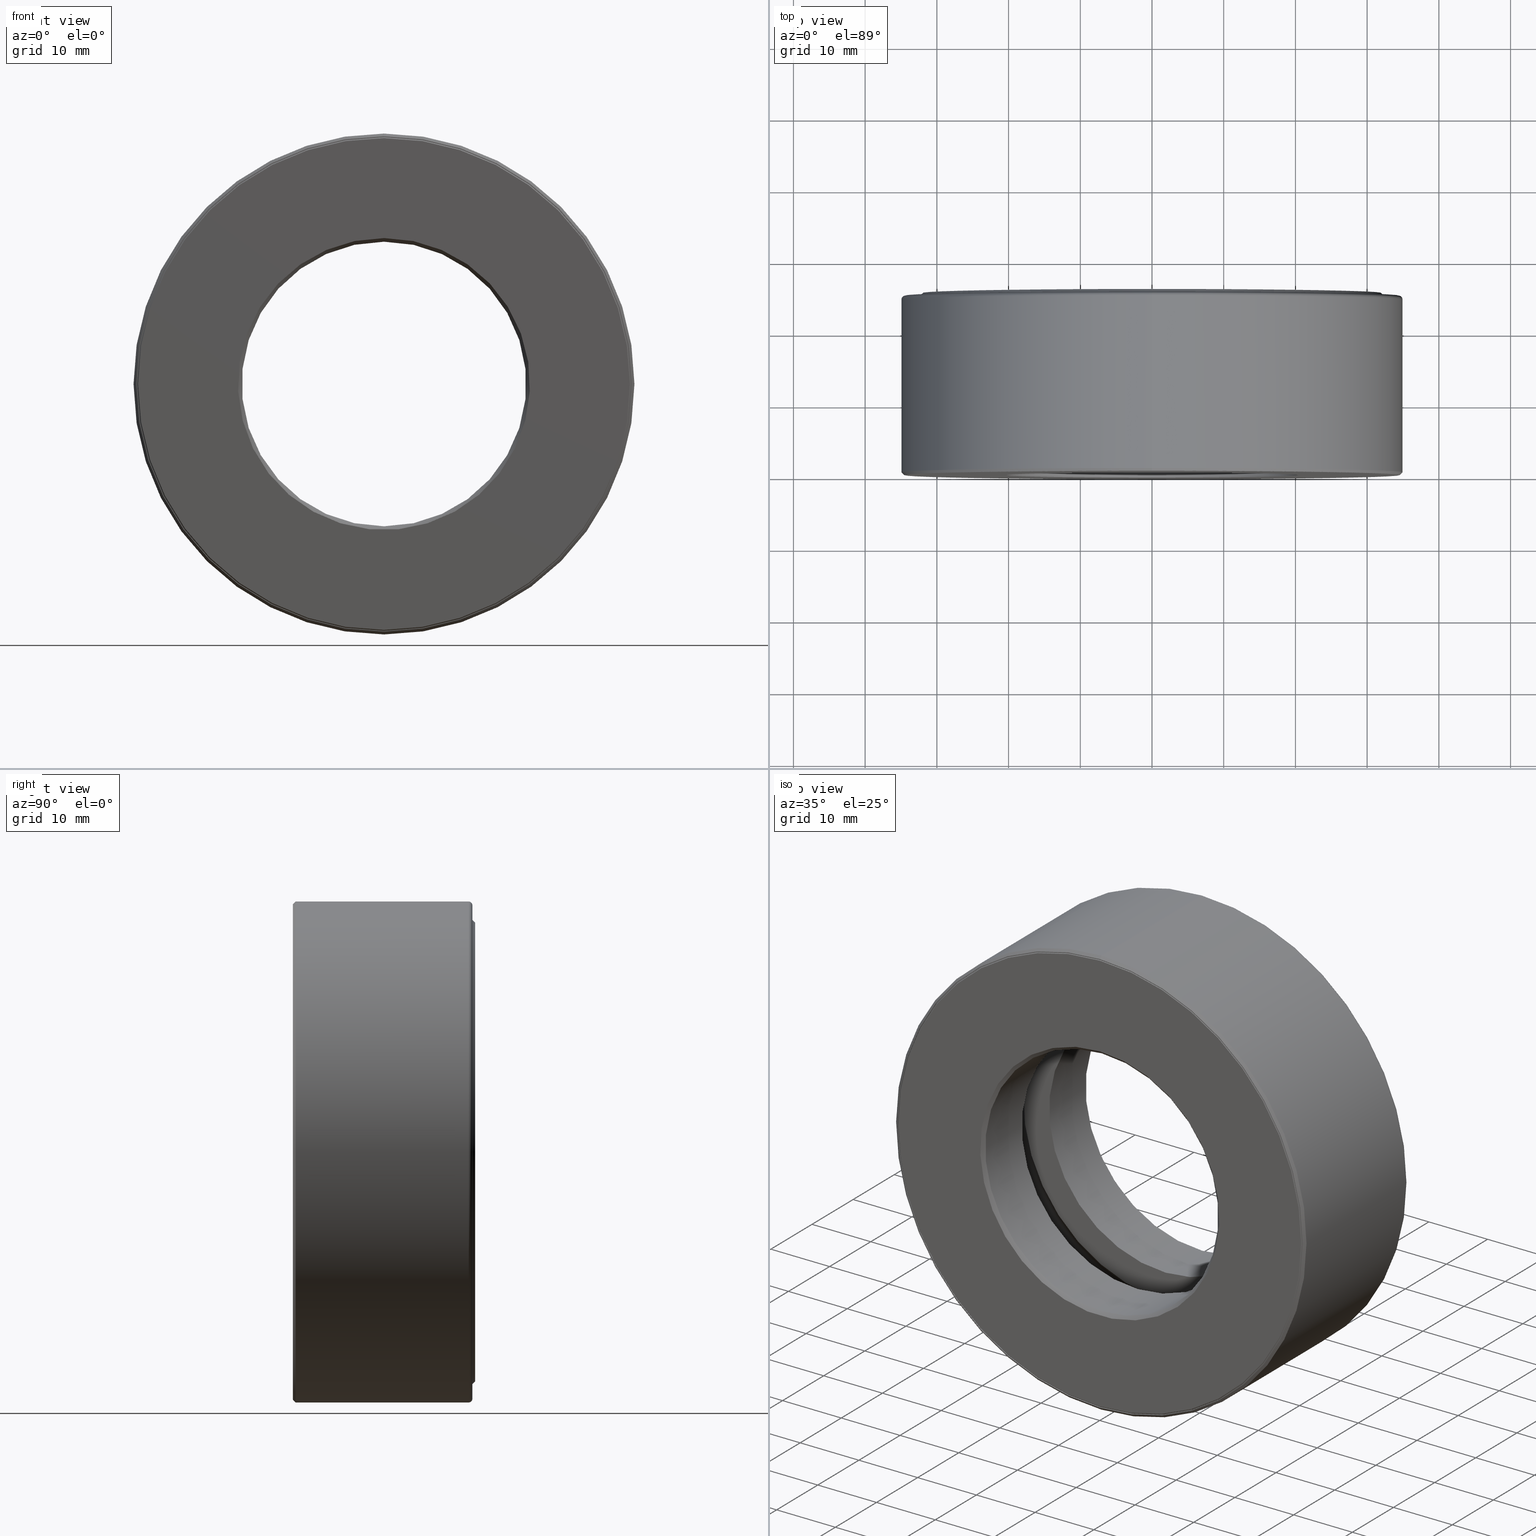
[diagram: canonical four-view strip — front | top / right | iso, engineering-drawing reading convention]
A machine part, canonical four-view strip (front | top / right | iso — engineering-drawing reading convention). The complete STEP part file that produces these views, byte-faithful:
ISO-10303-21;
HEADER;
FILE_DESCRIPTION (( 'STEP AP203' ),
    '1' );
FILE_NAME ('T-100-28.step',
    '2016-06-29T18:27:28',
    ( '' ),
    ( '' ),
    'SwSTEP 2.0',
    'SolidWorks 2016',
    '' );
FILE_SCHEMA (( 'CONFIG_CONTROL_DESIGN' ));
ENDSEC;

DATA;
#1 = AXIS2_PLACEMENT_3D ( 'NONE', #585, #500, #362 ) ;
#2 = CARTESIAN_POINT ( 'NONE',  ( 0.0000000000000000000, 0.01499999999999984000, 1.374999999999999300 ) ) ;
#3 = DIRECTION ( 'NONE',  ( 0.0000000000000000000, -1.000000000000000000, 0.0000000000000000000 ) ) ;
#4 = PLANE ( 'NONE',  #561 ) ;
#5 = ADVANCED_FACE ( 'NONE', ( #503, #558 ), #4, .T. ) ;
#6 = COORDINATED_UNIVERSAL_TIME_OFFSET ( 5, 0, .BEHIND. ) ;
#7 = TOROIDAL_SURFACE ( 'NONE', #483, 1.355000000000000000, 0.02000000000000005900 ) ;
#8 = CARTESIAN_POINT ( 'NONE',  ( 0.0000000000000000000, 0.9649999999999999700, 0.0000000000000000000 ) ) ;
#9 = CLOSED_SHELL ( 'NONE', ( #302 ) ) ;
#10 = PERSON_AND_ORGANIZATION_ROLE ( 'creator' ) ;
#11 = AXIS2_PLACEMENT_3D ( 'NONE', #212, #502, #311 ) ;
#12 = DIRECTION ( 'NONE',  ( 1.047444401652940500E-014, 0.0000000000000000000, 1.000000000000000000 ) ) ;
#13 = ADVANCED_BREP_SHAPE_REPRESENTATION ( 'T-100-28', ( #223, #101, #273, #43, #460, #437, #207 ), #271 ) ;
#14 = CIRCLE ( 'NONE', #451, 0.9522500000000001500 ) ;
#15 = FACE_OUTER_BOUND ( 'NONE', #236, .T. ) ;
#16 = DIRECTION ( 'NONE',  ( -0.0000000000000000000, 1.000000000000000000, -0.0000000000000000000 ) ) ;
#17 = ORIENTED_EDGE ( 'NONE', *, *, #471, .T. ) ;
#18 = EDGE_LOOP ( 'NONE', ( #280 ) ) ;
#19 = AXIS2_PLACEMENT_3D ( 'NONE', #368, #547, #544 ) ;
#20 = CARTESIAN_POINT ( 'NONE',  ( 0.0000000000000000000, 0.004999999999999966300, 0.0000000000000000000 ) ) ;
#21 = VERTEX_POINT ( 'NONE', #50 ) ;
#22 = CIRCLE ( 'NONE', #387, 1.347999999999999900 ) ;
#23 = PRODUCT_DEFINITION_FORMATION_WITH_SPECIFIED_SOURCE ( 'ANY', '', #125, .NOT_KNOWN. ) ;
#24 = EDGE_LOOP ( 'NONE', ( #433 ) ) ;
#25 = DIRECTION ( 'NONE',  ( 0.0000000000000000000, -0.0000000000000000000, -1.000000000000000000 ) ) ;
#26 = DIRECTION ( 'NONE',  ( -0.0000000000000000000, 1.000000000000000000, -0.0000000000000000000 ) ) ;
#27 = VERTEX_POINT ( 'NONE', #480 ) ;
#28 = FACE_OUTER_BOUND ( 'NONE', #515, .T. ) ;
#29 = EDGE_CURVE ( 'NONE', #62, #62, #64, .T. ) ;
#30 = PLANE ( 'NONE',  #396 ) ;
#31 = FACE_BOUND ( 'NONE', #383, .T. ) ;
#32 = ORIENTED_EDGE ( 'NONE', *, *, #110, .F. ) ;
#33 = CARTESIAN_POINT ( 'NONE',  ( 3.935772339210922200E-015, 0.5000000000000000000, 1.127250000000000100 ) ) ;
#34 = CARTESIAN_POINT ( 'NONE',  ( 0.0000000000000000000, 0.9649999999999999700, 0.0000000000000000000 ) ) ;
#35 = AXIS2_PLACEMENT_3D ( 'NONE', #227, #134, #522 ) ;
#36 = VERTEX_POINT ( 'NONE', #385 ) ;
#37 = DIRECTION ( 'NONE',  ( 0.0000000000000000000, 0.0000000000000000000, 1.000000000000000000 ) ) ;
#38 = FACE_OUTER_BOUND ( 'NONE', #504, .T. ) ;
#39 = AXIS2_PLACEMENT_3D ( 'NONE', #469, #46, #270 ) ;
#40 = ORIENTED_EDGE ( 'NONE', *, *, #505, .F. ) ;
#41 = DIRECTION ( 'NONE',  ( -0.0000000000000000000, 1.000000000000000000, -0.0000000000000000000 ) ) ;
#42 = ORIENTED_EDGE ( 'NONE', *, *, #315, .T. ) ;
#43 = MANIFOLD_SOLID_BREP ( 'BALLS[1]', #9 ) ;
#44 = CARTESIAN_POINT ( 'NONE',  ( 0.0000000000000000000, -6.189343110645596500E-017, 0.0000000000000000000 ) ) ;
#45 = AXIS2_PLACEMENT_3D ( 'NONE', #589, #506, #314 ) ;
#46 = DIRECTION ( 'NONE',  ( 0.0000000000000000000, -1.000000000000000000, 0.0000000000000000000 ) ) ;
#47 = CARTESIAN_POINT ( 'NONE',  ( 0.0000000000000000000, 0.0000000000000000000, 0.0000000000000000000 ) ) ;
#48 = FACE_BOUND ( 'NONE', #112, .T. ) ;
#49 = EDGE_LOOP ( 'NONE', ( #420 ) ) ;
#50 = CARTESIAN_POINT ( 'NONE',  ( 0.0000000000000000000, 0.9120000000000002500, 1.347999999999999900 ) ) ;
#51 = DIRECTION ( 'NONE',  ( 0.0000000000000000000, 0.0000000000000000000, 1.000000000000000000 ) ) ;
#52 = AXIS2_PLACEMENT_3D ( 'NONE', #33, #364, #415 ) ;
#53 = DIRECTION ( 'NONE',  ( 0.0000000000000000000, -1.000000000000000000, 0.0000000000000000000 ) ) ;
#54 = DATE_AND_TIME ( #582, #330 ) ;
#55 = FACE_OUTER_BOUND ( 'NONE', #18, .T. ) ;
#56 = CARTESIAN_POINT ( 'NONE',  ( 0.0000000000000000000, 0.0000000000000000000, 0.8012500000000001300 ) ) ;
#57 = ORIENTED_EDGE ( 'NONE', *, *, #406, .T. ) ;
#58 = CC_DESIGN_DATE_AND_TIME_ASSIGNMENT ( #553, #543, ( #286 ) ) ;
#59 = DIRECTION ( 'NONE',  ( -0.0000000000000000000, 1.000000000000000000, -0.0000000000000000000 ) ) ;
#60 = ADVANCED_FACE ( 'NONE', ( #78, #216 ), #491, .T. ) ;
#61 = APPLICATION_PROTOCOL_DEFINITION ( 'international standard', 'config_control_design', 1994, #100 ) ;
#62 = VERTEX_POINT ( 'NONE', #335 ) ;
#63 = DIRECTION ( 'NONE',  ( 0.0000000000000000000, 0.0000000000000000000, 1.000000000000000000 ) ) ;
#64 = CIRCLE ( 'NONE', #295, 1.355000000000000000 ) ;
#65 = ORIENTED_EDGE ( 'NONE', *, *, #436, .T. ) ;
#66 = AXIS2_PLACEMENT_3D ( 'NONE', #401, #452, #400 ) ;
#67 = ADVANCED_FACE ( 'NONE', ( ), #441, .T. ) ;
#68 = CARTESIAN_POINT ( 'NONE',  ( 0.0000000000000000000, 0.3687499999999999700, 0.0000000000000000000 ) ) ;
#69 = DIRECTION ( 'NONE',  ( 0.0000000000000000000, -1.000000000000000000, 0.0000000000000000000 ) ) ;
#70 = AXIS2_PLACEMENT_3D ( 'NONE', #44, #600, #423 ) ;
#71 = FACE_OUTER_BOUND ( 'NONE', #391, .T. ) ;
#72 = EDGE_LOOP ( 'NONE', ( #413 ) ) ;
#73 = DIRECTION ( 'NONE',  ( -0.0000000000000000000, 1.000000000000000000, -0.0000000000000000000 ) ) ;
#74 = ADVANCED_FACE ( 'NONE', ( #586, #31 ), #318, .F. ) ;
#75 = CALENDAR_DATE ( 2016, 29, 6 ) ;
#76 = EDGE_CURVE ( 'NONE', #296, #296, #466, .T. ) ;
#77 = CIRCLE ( 'NONE', #186, 0.7812499999999998900 ) ;
#78 = FACE_OUTER_BOUND ( 'NONE', #119, .T. ) ;
#79 = DIRECTION ( 'NONE',  ( -0.0000000000000000000, 1.000000000000000000, -0.0000000000000000000 ) ) ;
#80 = EDGE_LOOP ( 'NONE', ( #40 ) ) ;
#81 = DIRECTION ( 'NONE',  ( -0.0000000000000000000, 1.000000000000000000, 0.0000000000000000000 ) ) ;
#82 = LENGTH_MEASURE_WITH_UNIT ( LENGTH_MEASURE( 0.02539999999999999900 ), #230 );
#83 = AXIS2_PLACEMENT_3D ( 'NONE', #257, #255, #412 ) ;
#84 = DIRECTION ( 'NONE',  ( -0.0000000000000000000, 1.000000000000000000, -0.0000000000000000000 ) ) ;
#85 = CIRCLE ( 'NONE', #305, 0.7812500000000000000 ) ;
#86 = ORIENTED_EDGE ( 'NONE', *, *, #382, .T. ) ;
#87 = DIRECTION ( 'NONE',  ( -0.0000000000000000000, 1.000000000000000000, -0.0000000000000000000 ) ) ;
#88 = AXIS2_PLACEMENT_3D ( 'NONE', #187, #53, #127 ) ;
#89 = DATE_AND_TIME ( #208, #357 ) ;
#90 = FACE_OUTER_BOUND ( 'NONE', #291, .T. ) ;
#91 = CIRCLE ( 'NONE', #206, 1.302250000000000100 ) ;
#92 = EDGE_LOOP ( 'NONE', ( #298 ) ) ;
#93 = AXIS2_PLACEMENT_3D ( 'NONE', #482, #282, #476 ) ;
#94 = CARTESIAN_POINT ( 'NONE',  ( 0.0000000000000000000, 0.3687500000000000800, 0.7812500000000000000 ) ) ;
#95 = CARTESIAN_POINT ( 'NONE',  ( 0.0000000000000000000, -5.975917486140575200E-017, 1.349999999999999400 ) ) ;
#96 = CARTESIAN_POINT ( 'NONE',  ( 0.0000000000000000000, 0.6312499999999999800, 0.0000000000000000000 ) ) ;
#97 = AXIS2_PLACEMENT_3D ( 'NONE', #47, #372, #177 ) ;
#98 = APPROVAL_STATUS ( 'not_yet_approved' ) ;
#99 = FACE_BOUND ( 'NONE', #180, .T. ) ;
#100 = APPLICATION_CONTEXT ( 'configuration controlled 3d designs of mechanical parts and assemblies' ) ;
#101 = MANIFOLD_SOLID_BREP ( 'Revolve2[2]', #599 ) ;
#102 = ORIENTED_EDGE ( 'NONE', *, *, #436, .F. ) ;
#103 = PERSON_AND_ORGANIZATION ( #568, #303 ) ;
#104 = FACE_OUTER_BOUND ( 'NONE', #319, .T. ) ;
#105 = DIRECTION ( 'NONE',  ( -0.0000000000000000000, 1.000000000000000000, -0.0000000000000000000 ) ) ;
#106 = FACE_BOUND ( 'NONE', #467, .T. ) ;
#107 = ADVANCED_FACE ( 'NONE', ( #106, #381 ), #581, .F. ) ;
#108 = ORIENTED_EDGE ( 'NONE', *, *, #182, .F. ) ;
#109 = CARTESIAN_POINT ( 'NONE',  ( -4.774260415467792100E-016, 0.3687499999999999700, 0.0000000000000000000 ) ) ;
#110 = EDGE_CURVE ( 'NONE', #325, #325, #91, .T. ) ;
#111 = CONICAL_SURFACE ( 'NONE', #70, 1.359999999999999900, 0.7853981633974326200 ) ;
#112 = EDGE_LOOP ( 'NONE', ( #142 ) ) ;
#113 = ADVANCED_FACE ( 'NONE', ( #545, #479 ), #579, .F. ) ;
#114 = PLANE ( 'NONE',  #551 ) ;
#115 = VERTEX_POINT ( 'NONE', #434 ) ;
#116 = CARTESIAN_POINT ( 'NONE',  ( 0.0000000000000000000, 0.9649999999999999700, 0.0000000000000000000 ) ) ;
#117 = CIRCLE ( 'NONE', #419, 1.294999999999999900 ) ;
#118 = CIRCLE ( 'NONE', #337, 1.374999999999999300 ) ;
#119 = EDGE_LOOP ( 'NONE', ( #587 ) ) ;
#120 = CC_DESIGN_DATE_AND_TIME_ASSIGNMENT ( #54, #293, ( #565 ) ) ;
#121 = DIRECTION ( 'NONE',  ( -0.0000000000000000000, 1.000000000000000000, -0.0000000000000000000 ) ) ;
#122 = PERSON_AND_ORGANIZATION ( #568, #303 ) ;
#123 = CLOSED_SHELL ( 'NONE', ( #442 ) ) ;
#124 = COORDINATED_UNIVERSAL_TIME_OFFSET ( 5, 0, .BEHIND. ) ;
#125 = PRODUCT ( 'T-100-28', 'T-100-28', '', ( #486 ) ) ;
#126 = EDGE_CURVE ( 'NONE', #165, #165, #130, .T. ) ;
#127 = DIRECTION ( 'NONE',  ( 0.0000000000000000000, -0.0000000000000000000, -1.000000000000000000 ) ) ;
#128 = VERTEX_POINT ( 'NONE', #329 ) ;
#129 = CIRCLE ( 'NONE', #495, 0.7812500000000000000 ) ;
#130 = CIRCLE ( 'NONE', #196, 1.355000000000000000 ) ;
#131 =( CONVERSION_BASED_UNIT ( 'INCH', #82 ) LENGTH_UNIT ( ) NAMED_UNIT ( #361 ) );
#132 = EDGE_LOOP ( 'NONE', ( #237 ) ) ;
#133 = APPROVAL_DATE_TIME ( #510, #454 ) ;
#134 = DIRECTION ( 'NONE',  ( -0.0000000000000000000, 1.000000000000000000, -0.0000000000000000000 ) ) ;
#135 = EDGE_CURVE ( 'NONE', #380, #380, #576, .T. ) ;
#136 = CARTESIAN_POINT ( 'NONE',  ( 0.0000000000000000000, 0.9849999999999999900, 1.355000000000000000 ) ) ;
#137 = ADVANCED_FACE ( 'NONE', ( #366, #342 ), #549, .F. ) ;
#138 = VERTEX_POINT ( 'NONE', #139 ) ;
#139 = CARTESIAN_POINT ( 'NONE',  ( 0.0000000000000000000, 0.9849999999999999900, 1.294999999999999900 ) ) ;
#140 = FACE_OUTER_BOUND ( 'NONE', #132, .T. ) ;
#141 = EDGE_CURVE ( 'NONE', #27, #27, #185, .T. ) ;
#142 = ORIENTED_EDGE ( 'NONE', *, *, #175, .F. ) ;
#143 = AXIS2_PLACEMENT_3D ( 'NONE', #322, #41, #595 ) ;
#144 = APPLICATION_PROTOCOL_DEFINITION ( 'international standard', 'config_control_design', 1994, #390 ) ;
#145 = EDGE_LOOP ( 'NONE', ( #399 ) ) ;
#146 = PERSON_AND_ORGANIZATION_ROLE ( 'classification_officer' ) ;
#147 = ADVANCED_FACE ( 'NONE', ( ), #210, .T. ) ;
#148 = FACE_OUTER_BOUND ( 'NONE', #297, .T. ) ;
#149 = FACE_OUTER_BOUND ( 'NONE', #481, .T. ) ;
#150 = DIRECTION ( 'NONE',  ( 0.0000000000000000000, 0.0000000000000000000, 1.000000000000000000 ) ) ;
#151 = AXIS2_PLACEMENT_3D ( 'NONE', #462, #79, #458 ) ;
#152 = ORIENTED_EDGE ( 'NONE', *, *, #76, .F. ) ;
#153 = EDGE_LOOP ( 'NONE', ( #172 ) ) ;
#154 = DIRECTION ( 'NONE',  ( 0.0000000000000000000, 0.0000000000000000000, 1.000000000000000000 ) ) ;
#155 = DIRECTION ( 'NONE',  ( 0.0000000000000000000, 0.0000000000000000000, 1.000000000000000000 ) ) ;
#156 = AXIS2_PLACEMENT_3D ( 'NONE', #376, #121, #37 ) ;
#157 = CYLINDRICAL_SURFACE ( 'NONE', #143, 1.374999999999999800 ) ;
#158 = ORIENTED_EDGE ( 'NONE', *, *, #281, .T. ) ;
#159 = AXIS2_PLACEMENT_3D ( 'NONE', #174, #263, #274 ) ;
#160 = DIRECTION ( 'NONE',  ( 0.0000000000000000000, 0.0000000000000000000, 1.000000000000000000 ) ) ;
#161 = ADVANCED_FACE ( 'NONE', ( #312, #15 ), #570, .F. ) ;
#162 = EDGE_CURVE ( 'NONE', #256, #256, #118, .T. ) ;
#163 = DIRECTION ( 'NONE',  ( 0.0000000000000000000, -1.000000000000000000, 0.0000000000000000000 ) ) ;
#164 = UNCERTAINTY_MEASURE_WITH_UNIT (LENGTH_MEASURE( 1.000000000000000100E-005 ), #131, 'distance_accuracy_value', 'NONE');
#165 = VERTEX_POINT ( 'NONE', #514 ) ;
#166 = CARTESIAN_POINT ( 'NONE',  ( 0.0000000000000000000, 0.6312499999999999800, 0.0000000000000000000 ) ) ;
#167 = FACE_OUTER_BOUND ( 'NONE', #345, .T. ) ;
#168 = EDGE_LOOP ( 'NONE', ( #367 ) ) ;
#169 = CARTESIAN_POINT ( 'NONE',  ( -2.977491001268954500E-016, 1.000000000000000000, 0.0000000000000000000 ) ) ;
#170 = DIRECTION ( 'NONE',  ( 0.0000000000000000000, 0.0000000000000000000, 1.000000000000000000 ) ) ;
#171 = EDGE_CURVE ( 'NONE', #429, #429, #425, .T. ) ;
#172 = ORIENTED_EDGE ( 'NONE', *, *, #76, .T. ) ;
#173 = EDGE_LOOP ( 'NONE', ( #57 ) ) ;
#174 = CARTESIAN_POINT ( 'NONE',  ( 0.0000000000000000000, 0.3687499999999999700, 0.0000000000000000000 ) ) ;
#175 = EDGE_CURVE ( 'NONE', #496, #496, #85, .T. ) ;
#176 = DIRECTION ( 'NONE',  ( 0.0000000000000000000, 0.0000000000000000000, 1.000000000000000000 ) ) ;
#177 = DIRECTION ( 'NONE',  ( 0.0000000000000000000, 0.0000000000000000000, 1.000000000000000000 ) ) ;
#178 = FACE_OUTER_BOUND ( 'NONE', #92, .T. ) ;
#179 = EDGE_LOOP ( 'NONE', ( #200 ) ) ;
#180 = EDGE_LOOP ( 'NONE', ( #333 ) ) ;
#181 = DIRECTION ( 'NONE',  ( 0.0000000000000000000, 0.0000000000000000000, 1.000000000000000000 ) ) ;
#182 = EDGE_CURVE ( 'NONE', #349, #349, #591, .T. ) ;
#183 = CARTESIAN_POINT ( 'NONE',  ( 0.0000000000000000000, 1.000000000000000000, 1.260000000000000000 ) ) ;
#184 = CARTESIAN_POINT ( 'NONE',  ( 0.0000000000000000000, 0.9649999999999999700, 1.294999999999999900 ) ) ;
#185 = CIRCLE ( 'NONE', #555, 1.355000000000000000 ) ;
#186 = AXIS2_PLACEMENT_3D ( 'NONE', #283, #564, #386 ) ;
#187 = CARTESIAN_POINT ( 'NONE',  ( 0.0000000000000000000, 0.9849999999999999900, 0.0000000000000000000 ) ) ;
#188 = ORIENTED_EDGE ( 'NONE', *, *, #110, .T. ) ;
#189 = CARTESIAN_POINT ( 'NONE',  ( 0.0000000000000000000, 0.3687499999999999700, 0.9522500000000001500 ) ) ;
#190 = DIRECTION ( 'NONE',  ( -0.0000000000000000000, 1.000000000000000000, -0.0000000000000000000 ) ) ;
#191 = APPROVAL ( #98, 'UNSPECIFIED' ) ;
#192 = PERSON_AND_ORGANIZATION_ROLE ( 'design_owner' ) ;
#193 = CARTESIAN_POINT ( 'NONE',  ( -1.180731701763276800E-014, 0.5000000000000000000, -1.127250000000000100 ) ) ;
#194 = COORDINATED_UNIVERSAL_TIME_OFFSET ( 5, 0, .BEHIND. ) ;
#195 = CIRCLE ( 'NONE', #374, 1.375000000000000000 ) ;
#196 = AXIS2_PLACEMENT_3D ( 'NONE', #68, #16, #198 ) ;
#197 = EDGE_LOOP ( 'NONE', ( #32 ) ) ;
#198 = DIRECTION ( 'NONE',  ( 0.0000000000000000000, 0.0000000000000000000, 1.000000000000000000 ) ) ;
#199 = VERTEX_POINT ( 'NONE', #602 ) ;
#200 = ORIENTED_EDGE ( 'NONE', *, *, #202, .F. ) ;
#201 = DIRECTION ( 'NONE',  ( -0.0000000000000000000, 1.000000000000000000, -0.0000000000000000000 ) ) ;
#202 = EDGE_CURVE ( 'NONE', #513, #513, #288, .T. ) ;
#203 = EDGE_LOOP ( 'NONE', ( #313 ) ) ;
#204 = DIRECTION ( 'NONE',  ( 0.0000000000000000000, 0.0000000000000000000, 1.000000000000000000 ) ) ;
#205 = ADVANCED_FACE ( 'NONE', ( #167, #48 ), #431, .F. ) ;
#206 = AXIS2_PLACEMENT_3D ( 'NONE', #494, #403, #150 ) ;
#207 = AXIS2_PLACEMENT_3D ( 'NONE', #427, #517, #235 ) ;
#208 = CALENDAR_DATE ( 2016, 29, 6 ) ;
#209 = CONICAL_SURFACE ( 'NONE', #39, 1.260000000000000000, 0.7853981633974498300 ) ;
#210 = SPHERICAL_SURFACE ( 'NONE', #66, 0.2187499999999999400 ) ;
#211 = ORIENTED_EDGE ( 'NONE', *, *, #527, .T. ) ;
#212 = CARTESIAN_POINT ( 'NONE',  ( 0.0000000000000000000, -5.975917486140575200E-017, 0.0000000000000000000 ) ) ;
#213 = PLANE ( 'NONE',  #232 ) ;
#214 = CIRCLE ( 'NONE', #356, 1.260000000000000000 ) ;
#215 = DIRECTION ( 'NONE',  ( 0.0000000000000000000, 0.0000000000000000000, 1.000000000000000000 ) ) ;
#216 = FACE_BOUND ( 'NONE', #226, .T. ) ;
#217 = ORIENTED_EDGE ( 'NONE', *, *, #175, .T. ) ;
#218 = APPROVAL ( #525, 'UNSPECIFIED' ) ;
#219 = LOCAL_TIME ( 14, 27, 28.00000000000000000, #6 ) ;
#220 = FACE_OUTER_BOUND ( 'NONE', #145, .T. ) ;
#221 = FACE_OUTER_BOUND ( 'NONE', #197, .T. ) ;
#222 = PLANE ( 'NONE',  #339 ) ;
#223 = MANIFOLD_SOLID_BREP ( 'Revolve2[1]', #300 ) ;
#224 = DIRECTION ( 'NONE',  ( -0.0000000000000000000, 1.000000000000000000, 0.0000000000000000000 ) ) ;
#225 = CLOSED_SHELL ( 'NONE', ( #67 ) ) ;
#226 = EDGE_LOOP ( 'NONE', ( #331 ) ) ;
#227 = CARTESIAN_POINT ( 'NONE',  ( 0.0000000000000000000, 0.6312499999999999800, 0.0000000000000000000 ) ) ;
#228 = AXIS2_PLACEMENT_3D ( 'NONE', #395, #190, #336 ) ;
#229 = DIRECTION ( 'NONE',  ( 0.0000000000000000000, -0.0000000000000000000, -1.000000000000000000 ) ) ;
#230 =( LENGTH_UNIT ( ) NAMED_UNIT ( * ) SI_UNIT ( $, .METRE. ) );
#231 = CALENDAR_DATE ( 2016, 29, 6 ) ;
#232 = AXIS2_PLACEMENT_3D ( 'NONE', #169, #81, #453 ) ;
#233 = FACE_OUTER_BOUND ( 'NONE', #550, .T. ) ;
#234 = CC_DESIGN_APPROVAL ( #454, ( #286 ) ) ;
#235 = DIRECTION ( 'NONE',  ( 1.000000000000000000, 0.0000000000000000000, 0.0000000000000000000 ) ) ;
#236 = EDGE_LOOP ( 'NONE', ( #516 ) ) ;
#237 = ORIENTED_EDGE ( 'NONE', *, *, #135, .T. ) ;
#238 = CARTESIAN_POINT ( 'NONE',  ( 0.0000000000000000000, 0.02000000000000060800, 0.0000000000000000000 ) ) ;
#239 = VERTEX_POINT ( 'NONE', #136 ) ;
#240 = FACE_BOUND ( 'NONE', #72, .T. ) ;
#241 = ORIENTED_EDGE ( 'NONE', *, *, #584, .T. ) ;
#242 = ORIENTED_EDGE ( 'NONE', *, *, #445, .T. ) ;
#243 = DIRECTION ( 'NONE',  ( -0.0000000000000000000, 1.000000000000000000, -0.0000000000000000000 ) ) ;
#244 = DIRECTION ( 'NONE',  ( 0.0000000000000000000, 0.0000000000000000000, 1.000000000000000000 ) ) ;
#245 = CC_DESIGN_APPROVAL ( #218, ( #23 ) ) ;
#246 = CARTESIAN_POINT ( 'NONE',  ( 0.0000000000000000000, 0.01499999999999984000, 0.0000000000000000000 ) ) ;
#247 = VERTEX_POINT ( 'NONE', #189 ) ;
#248 = CYLINDRICAL_SURFACE ( 'NONE', #1, 0.7812500000000000000 ) ;
#249 = CARTESIAN_POINT ( 'NONE',  ( 0.0000000000000000000, 0.0000000000000000000, 0.0000000000000000000 ) ) ;
#250 = CC_DESIGN_PERSON_AND_ORGANIZATION_ASSIGNMENT ( #556, #10, ( #23 ) ) ;
#251 = ORIENTED_EDGE ( 'NONE', *, *, #315, .F. ) ;
#252 = ADVANCED_FACE ( 'NONE', ( #528, #475 ), #213, .T. ) ;
#253 = PERSON_AND_ORGANIZATION ( #568, #303 ) ;
#254 = ADVANCED_FACE ( 'NONE', ( #71, #149 ), #537, .F. ) ;
#255 = DIRECTION ( 'NONE',  ( -0.0000000000000000000, 1.000000000000000000, -0.0000000000000000000 ) ) ;
#256 = VERTEX_POINT ( 'NONE', #2 ) ;
#257 = CARTESIAN_POINT ( 'NONE',  ( 0.0000000000000000000, 1.000000000000000200, 0.0000000000000000000 ) ) ;
#258 = CIRCLE ( 'NONE', #432, 1.359999999999999900 ) ;
#259 = EDGE_LOOP ( 'NONE', ( #269 ) ) ;
#260 = EDGE_LOOP ( 'NONE', ( #404 ) ) ;
#261 = DIRECTION ( 'NONE',  ( -0.0000000000000000000, 1.000000000000000000, 0.0000000000000000000 ) ) ;
#262 = AXIS2_PLACEMENT_3D ( 'NONE', #238, #392, #346 ) ;
#263 = DIRECTION ( 'NONE',  ( -0.0000000000000000000, 1.000000000000000000, -0.0000000000000000000 ) ) ;
#264 = VERTEX_POINT ( 'NONE', #277 ) ;
#265 = DIRECTION ( 'NONE',  ( -0.0000000000000000000, 1.000000000000000000, -0.0000000000000000000 ) ) ;
#266 = CIRCLE ( 'NONE', #35, 1.347999999999999900 ) ;
#267 = ORIENTED_EDGE ( 'NONE', *, *, #546, .T. ) ;
#268 = AXIS2_PLACEMENT_3D ( 'NONE', #365, #594, #215 ) ;
#269 = ORIENTED_EDGE ( 'NONE', *, *, #382, .F. ) ;
#270 = DIRECTION ( 'NONE',  ( 0.0000000000000000000, 0.0000000000000000000, -1.000000000000000000 ) ) ;
#271 =( GEOMETRIC_REPRESENTATION_CONTEXT ( 3 ) GLOBAL_UNCERTAINTY_ASSIGNED_CONTEXT ( ( #164 ) ) GLOBAL_UNIT_ASSIGNED_CONTEXT ( ( #131, #560, #605 ) ) REPRESENTATION_CONTEXT ( 'NONE', 'WORKASPACE' ) );
#272 = LOCAL_TIME ( 14, 27, 28.00000000000000000, #124 ) ;
#273 = MANIFOLD_SOLID_BREP ( 'Revolve3', #508 ) ;
#274 = DIRECTION ( 'NONE',  ( 0.0000000000000000000, 0.0000000000000000000, 1.000000000000000000 ) ) ;
#275 = FACE_OUTER_BOUND ( 'NONE', #562, .T. ) ;
#276 = FACE_BOUND ( 'NONE', #539, .T. ) ;
#277 = CARTESIAN_POINT ( 'NONE',  ( 0.0000000000000000000, 0.6312499999999999800, 0.9522500000000001500 ) ) ;
#278 = EDGE_LOOP ( 'NONE', ( #384 ) ) ;
#279 = ADVANCED_FACE ( 'NONE', ( #276, #90 ), #30, .F. ) ;
#280 = ORIENTED_EDGE ( 'NONE', *, *, #584, .F. ) ;
#281 = EDGE_CURVE ( 'NONE', #520, #520, #447, .T. ) ;
#282 = DIRECTION ( 'NONE',  ( -0.0000000000000000000, 1.000000000000000000, -0.0000000000000000000 ) ) ;
#283 = CARTESIAN_POINT ( 'NONE',  ( 0.0000000000000000000, 0.02000000000000060800, 0.0000000000000000000 ) ) ;
#284 = PRODUCT_DEFINITION_SHAPE ( 'NONE', 'NONE',  #565 ) ;
#285 = COORDINATED_UNIVERSAL_TIME_OFFSET ( 5, 0, .BEHIND. ) ;
#286 = SECURITY_CLASSIFICATION ( '', '', #439 ) ;
#287 = CARTESIAN_POINT ( 'NONE',  ( 0.0000000000000000000, 0.9649999999999999700, 1.375000000000000000 ) ) ;
#288 = CIRCLE ( 'NONE', #11, 1.349999999999999400 ) ;
#289 = ORIENTED_EDGE ( 'NONE', *, *, #182, .T. ) ;
#290 = CARTESIAN_POINT ( 'NONE',  ( -1.418662552022333100E-031, -6.102704083022128200E-017, 0.0000000000000000000 ) ) ;
#291 = EDGE_LOOP ( 'NONE', ( #241 ) ) ;
#292 = APPROVAL_PERSON_ORGANIZATION ( #253, #454, #463 ) ;
#293 = DATE_TIME_ROLE ( 'creation_date' ) ;
#294 = ADVANCED_FACE ( 'NONE', ( #418, #221 ), #306, .F. ) ;
#295 = AXIS2_PLACEMENT_3D ( 'NONE', #8, #59, #63 ) ;
#296 = VERTEX_POINT ( 'NONE', #94 ) ;
#297 = EDGE_LOOP ( 'NONE', ( #217 ) ) ;
#298 = ORIENTED_EDGE ( 'NONE', *, *, #162, .T. ) ;
#299 = ADVANCED_FACE ( 'NONE', ( #55, #275 ), #459, .F. ) ;
#300 = CLOSED_SHELL ( 'NONE', ( #299, #107, #161, #113, #254, #541, #353, #529, #532, #571, #407, #60, #343, #74, #137, #279 ) ) ;
#301 = DIRECTION ( 'NONE',  ( 0.0000000000000000000, 0.0000000000000000000, 1.000000000000000000 ) ) ;
#302 = ADVANCED_FACE ( 'NONE', ( ), #398, .T. ) ;
#303 = ORGANIZATION ( 'UNSPECIFIED', 'UNSPECIFIED', '' ) ;
#304 = CARTESIAN_POINT ( 'NONE',  ( 0.0000000000000000000, 0.9649999999999999700, 0.0000000000000000000 ) ) ;
#305 = AXIS2_PLACEMENT_3D ( 'NONE', #542, #73, #310 ) ;
#306 = TOROIDAL_SURFACE ( 'NONE', #268, 1.127250000000000100, 0.2187499999999999200 ) ;
#307 = ORIENTED_EDGE ( 'NONE', *, *, #445, .F. ) ;
#308 = AXIS2_PLACEMENT_3D ( 'NONE', #20, #355, #538 ) ;
#309 = CC_DESIGN_SECURITY_CLASSIFICATION ( #286, ( #23 ) ) ;
#310 = DIRECTION ( 'NONE',  ( 0.0000000000000000000, 0.0000000000000000000, 1.000000000000000000 ) ) ;
#311 = DIRECTION ( 'NONE',  ( 0.0000000000000000000, 0.0000000000000000000, 1.000000000000000000 ) ) ;
#312 = FACE_OUTER_BOUND ( 'NONE', #203, .T. ) ;
#313 = ORIENTED_EDGE ( 'NONE', *, *, #126, .F. ) ;
#314 = DIRECTION ( 'NONE',  ( 0.0000000000000000000, 0.0000000000000000000, 1.000000000000000000 ) ) ;
#315 = EDGE_CURVE ( 'NONE', #317, #317, #195, .T. ) ;
#316 = CARTESIAN_POINT ( 'NONE',  ( -1.472761619391370000E-016, 0.3687499999999999700, 0.0000000000000000000 ) ) ;
#317 = VERTEX_POINT ( 'NONE', #287 ) ;
#318 = CONICAL_SURFACE ( 'NONE', #262, 0.7812499999999998900, 0.7853981633974380600 ) ;
#319 = EDGE_LOOP ( 'NONE', ( #531 ) ) ;
#320 = CARTESIAN_POINT ( 'NONE',  ( 1.127250000000000100, 0.5000000000000000000, -7.871544678421844400E-015 ) ) ;
#321 = CC_DESIGN_PERSON_AND_ORGANIZATION_ASSIGNMENT ( #455, #340, ( #23 ) ) ;
#322 = CARTESIAN_POINT ( 'NONE',  ( 0.0000000000000000000, 0.0000000000000000000, 0.0000000000000000000 ) ) ;
#323 = DIRECTION ( 'NONE',  ( -0.0000000000000000000, 1.000000000000000000, -0.0000000000000000000 ) ) ;
#324 = PERSON_AND_ORGANIZATION ( #568, #303 ) ;
#325 = VERTEX_POINT ( 'NONE', #430 ) ;
#326 = ORIENTED_EDGE ( 'NONE', *, *, #29, .F. ) ;
#327 = AXIS2_PLACEMENT_3D ( 'NONE', #193, #526, #12 ) ;
#328 = DIRECTION ( 'NONE',  ( 0.0000000000000000000, 0.0000000000000000000, 1.000000000000000000 ) ) ;
#329 = CARTESIAN_POINT ( 'NONE',  ( 0.0000000000000000000, 0.6312499999999999800, 1.347999999999999900 ) ) ;
#330 = LOCAL_TIME ( 14, 27, 28.00000000000000000, #485 ) ;
#331 = ORIENTED_EDGE ( 'NONE', *, *, #202, .T. ) ;
#332 = PLANE ( 'NONE',  #88 ) ;
#333 = ORIENTED_EDGE ( 'NONE', *, *, #141, .T. ) ;
#334 = CARTESIAN_POINT ( 'NONE',  ( 0.0000000000000000000, 0.004999999999999966300, 1.355000000000000000 ) ) ;
#335 = CARTESIAN_POINT ( 'NONE',  ( 0.0000000000000000000, 0.9649999999999999700, 1.355000000000000000 ) ) ;
#336 = DIRECTION ( 'NONE',  ( 0.0000000000000000000, 0.0000000000000000000, 1.000000000000000000 ) ) ;
#337 = AXIS2_PLACEMENT_3D ( 'NONE', #246, #201, #301 ) ;
#338 = PERSON_AND_ORGANIZATION ( #568, #303 ) ;
#339 = AXIS2_PLACEMENT_3D ( 'NONE', #559, #3, #229 ) ;
#340 = PERSON_AND_ORGANIZATION_ROLE ( 'design_supplier' ) ;
#341 = CIRCLE ( 'NONE', #369, 0.9522500000000001500 ) ;
#342 = FACE_OUTER_BOUND ( 'NONE', #153, .T. ) ;
#343 = ADVANCED_FACE ( 'NONE', ( #373, #409 ), #114, .F. ) ;
#344 = EDGE_LOOP ( 'NONE', ( #448 ) ) ;
#345 = EDGE_LOOP ( 'NONE', ( #289 ) ) ;
#346 = DIRECTION ( 'NONE',  ( 0.0000000000000000000, 0.0000000000000000000, -1.000000000000000000 ) ) ;
#347 = ADVANCED_FACE ( 'NONE', ( #148, #28 ), #248, .F. ) ;
#348 = EDGE_CURVE ( 'NONE', #264, #264, #14, .T. ) ;
#349 = VERTEX_POINT ( 'NONE', #388 ) ;
#350 = FACE_OUTER_BOUND ( 'NONE', #351, .T. ) ;
#351 = EDGE_LOOP ( 'NONE', ( #251 ) ) ;
#352 = EDGE_LOOP ( 'NONE', ( #375 ) ) ;
#353 = ADVANCED_FACE ( 'NONE', ( #104, #233 ), #7, .T. ) ;
#354 = CALENDAR_DATE ( 2016, 29, 6 ) ;
#355 = DIRECTION ( 'NONE',  ( -0.0000000000000000000, 1.000000000000000000, -0.0000000000000000000 ) ) ;
#356 = AXIS2_PLACEMENT_3D ( 'NONE', #470, #265, #176 ) ;
#357 = LOCAL_TIME ( 14, 27, 28.00000000000000000, #285 ) ;
#358 = CARTESIAN_POINT ( 'NONE',  ( 0.0000000000000000000, 0.0000000000000000000, 0.0000000000000000000 ) ) ;
#359 = SPHERICAL_SURFACE ( 'NONE', #577, 0.2187499999999999400 ) ;
#360 = ORIENTED_EDGE ( 'NONE', *, *, #162, .F. ) ;
#361 = DIMENSIONAL_EXPONENTS ( 1.000000000000000000, 0.0000000000000000000, 0.0000000000000000000, 0.0000000000000000000, 0.0000000000000000000, 0.0000000000000000000, 0.0000000000000000000 ) ;
#362 = DIRECTION ( 'NONE',  ( 0.0000000000000000000, 0.0000000000000000000, 1.000000000000000000 ) ) ;
#363 = AXIS2_PLACEMENT_3D ( 'NONE', #249, #443, #244 ) ;
#364 = DIRECTION ( 'NONE',  ( -1.000000000000000000, 0.0000000000000000000, 3.491481338843132200E-015 ) ) ;
#365 = CARTESIAN_POINT ( 'NONE',  ( 0.0000000000000000000, 0.5000000000000000000, 0.0000000000000000000 ) ) ;
#366 = FACE_OUTER_BOUND ( 'NONE', #260, .T. ) ;
#367 = ORIENTED_EDGE ( 'NONE', *, *, #471, .F. ) ;
#368 = CARTESIAN_POINT ( 'NONE',  ( 0.0000000000000000000, 0.9649999999999999700, 0.0000000000000000000 ) ) ;
#369 = AXIS2_PLACEMENT_3D ( 'NONE', #518, #428, #181 ) ;
#370 = DIRECTION ( 'NONE',  ( -0.0000000000000000000, 1.000000000000000000, -0.0000000000000000000 ) ) ;
#371 = APPROVAL_PERSON_ORGANIZATION ( #103, #191, #394 ) ;
#372 = DIRECTION ( 'NONE',  ( -0.0000000000000000000, 1.000000000000000000, -0.0000000000000000000 ) ) ;
#373 = FACE_OUTER_BOUND ( 'NONE', #179, .T. ) ;
#374 = AXIS2_PLACEMENT_3D ( 'NONE', #34, #84, #160 ) ;
#375 = ORIENTED_EDGE ( 'NONE', *, *, #141, .F. ) ;
#376 = CARTESIAN_POINT ( 'NONE',  ( 0.0000000000000000000, 0.9849999999999999900, 0.0000000000000000000 ) ) ;
#377 = PRODUCT_RELATED_PRODUCT_CATEGORY ( 'detail', '', ( #125 ) ) ;
#378 = DIRECTION ( 'NONE',  ( -0.0000000000000000000, 1.000000000000000000, -0.0000000000000000000 ) ) ;
#379 = CARTESIAN_POINT ( 'NONE',  ( 0.0000000000000000000, 0.02000000000000060800, 0.7812499999999998900 ) ) ;
#380 = VERTEX_POINT ( 'NONE', #334 ) ;
#381 = FACE_OUTER_BOUND ( 'NONE', #530, .T. ) ;
#382 = EDGE_CURVE ( 'NONE', #36, #36, #258, .T. ) ;
#383 = EDGE_LOOP ( 'NONE', ( #267 ) ) ;
#384 = ORIENTED_EDGE ( 'NONE', *, *, #348, .T. ) ;
#385 = CARTESIAN_POINT ( 'NONE',  ( 0.0000000000000000000, -6.189343110645596500E-017, 1.359999999999999900 ) ) ;
#386 = DIRECTION ( 'NONE',  ( 0.0000000000000000000, 0.0000000000000000000, 1.000000000000000000 ) ) ;
#387 = AXIS2_PLACEMENT_3D ( 'NONE', #472, #87, #422 ) ;
#388 = CARTESIAN_POINT ( 'NONE',  ( 0.0000000000000000000, 1.000000000000000200, 0.8012500000000002400 ) ) ;
#389 = VERTEX_POINT ( 'NONE', #183 ) ;
#390 = APPLICATION_CONTEXT ( 'configuration controlled 3d designs of mechanical parts and assemblies' ) ;
#391 = EDGE_LOOP ( 'NONE', ( #410 ) ) ;
#392 = DIRECTION ( 'NONE',  ( 0.0000000000000000000, -1.000000000000000000, 0.0000000000000000000 ) ) ;
#393 = AXIS2_PLACEMENT_3D ( 'NONE', #290, #224, #51 ) ;
#394 = APPROVAL_ROLE ( '' ) ;
#395 = CARTESIAN_POINT ( 'NONE',  ( 0.0000000000000000000, -5.975917486140575200E-017, 0.0000000000000000000 ) ) ;
#396 = AXIS2_PLACEMENT_3D ( 'NONE', #316, #163, #25 ) ;
#397 = CYLINDRICAL_SURFACE ( 'NONE', #97, 1.355000000000000000 ) ;
#398 = SPHERICAL_SURFACE ( 'NONE', #52, 0.2187499999999999400 ) ;
#399 = ORIENTED_EDGE ( 'NONE', *, *, #348, .F. ) ;
#400 = DIRECTION ( 'NONE',  ( 1.000000000000000000, 0.0000000000000000000, 0.0000000000000000000 ) ) ;
#401 = CARTESIAN_POINT ( 'NONE',  ( -1.127250000000000100, 0.5000000000000000000, 0.0000000000000000000 ) ) ;
#402 = FACE_BOUND ( 'NONE', #604, .T. ) ;
#403 = DIRECTION ( 'NONE',  ( -0.0000000000000000000, 1.000000000000000000, -0.0000000000000000000 ) ) ;
#404 = ORIENTED_EDGE ( 'NONE', *, *, #546, .F. ) ;
#405 = EDGE_LOOP ( 'NONE', ( #158 ) ) ;
#406 = EDGE_CURVE ( 'NONE', #239, #239, #501, .T. ) ;
#407 = ADVANCED_FACE ( 'NONE', ( #590, #140 ), #397, .F. ) ;
#408 = DIRECTION ( 'NONE',  ( -0.0000000000000000000, 1.000000000000000000, -0.0000000000000000000 ) ) ;
#409 = FACE_BOUND ( 'NONE', #487, .T. ) ;
#410 = ORIENTED_EDGE ( 'NONE', *, *, #281, .F. ) ;
#411 = EDGE_LOOP ( 'NONE', ( #326 ) ) ;
#412 = DIRECTION ( 'NONE',  ( 0.0000000000000000000, 0.0000000000000000000, 1.000000000000000000 ) ) ;
#413 = ORIENTED_EDGE ( 'NONE', *, *, #527, .F. ) ;
#414 = AXIS2_PLACEMENT_3D ( 'NONE', #497, #105, #154 ) ;
#415 = DIRECTION ( 'NONE',  ( -3.491481338843132200E-015, 0.0000000000000000000, -1.000000000000000000 ) ) ;
#416 = DIRECTION ( 'NONE',  ( 6.982962677686264300E-015, -0.0000000000000000000, 1.000000000000000000 ) ) ;
#417 = APPROVAL_PERSON_ORGANIZATION ( #338, #218, #488 ) ;
#418 = FACE_OUTER_BOUND ( 'NONE', #278, .T. ) ;
#419 = AXIS2_PLACEMENT_3D ( 'NONE', #552, #378, #601 ) ;
#420 = ORIENTED_EDGE ( 'NONE', *, *, #171, .F. ) ;
#421 = DIRECTION ( 'NONE',  ( -1.000000000000000000, 0.0000000000000000000, 6.982962677686264300E-015 ) ) ;
#422 = DIRECTION ( 'NONE',  ( 0.0000000000000000000, 0.0000000000000000000, 1.000000000000000000 ) ) ;
#423 = DIRECTION ( 'NONE',  ( 0.0000000000000000000, 0.0000000000000000000, 1.000000000000000000 ) ) ;
#424 = SHAPE_DEFINITION_REPRESENTATION ( #284, #13 ) ;
#425 = CIRCLE ( 'NONE', #363, 0.8012500000000001300 ) ;
#426 = ORIENTED_EDGE ( 'NONE', *, *, #534, .T. ) ;
#427 = CARTESIAN_POINT ( 'NONE',  ( 0.0000000000000000000, 0.0000000000000000000, 0.0000000000000000000 ) ) ;
#428 = DIRECTION ( 'NONE',  ( -0.0000000000000000000, 1.000000000000000000, -0.0000000000000000000 ) ) ;
#429 = VERTEX_POINT ( 'NONE', #56 ) ;
#430 = CARTESIAN_POINT ( 'NONE',  ( 0.0000000000000000000, 0.6312499999999999800, 1.302250000000000100 ) ) ;
#431 = CONICAL_SURFACE ( 'NONE', #592, 0.7812500000000000000, 0.7853981633974380600 ) ;
#432 = AXIS2_PLACEMENT_3D ( 'NONE', #596, #323, #328 ) ;
#433 = ORIENTED_EDGE ( 'NONE', *, *, #505, .T. ) ;
#434 = CARTESIAN_POINT ( 'NONE',  ( 0.0000000000000000000, 0.6312499999999999800, 0.7812500000000000000 ) ) ;
#435 = DIRECTION ( 'NONE',  ( 0.0000000000000000000, -0.0000000000000000000, -1.000000000000000000 ) ) ;
#436 = EDGE_CURVE ( 'NONE', #115, #115, #129, .T. ) ;
#437 = MANIFOLD_SOLID_BREP ( 'BALLS[3]', #225 ) ;
#438 = CC_DESIGN_PERSON_AND_ORGANIZATION_ASSIGNMENT ( #574, #566, ( #565 ) ) ;
#439 = SECURITY_CLASSIFICATION_LEVEL ( 'unclassified' ) ;
#440 = LOCAL_TIME ( 14, 27, 28.00000000000000000, #194 ) ;
#441 = SPHERICAL_SURFACE ( 'NONE', #327, 0.2187499999999999400 ) ;
#442 = ADVANCED_FACE ( 'NONE', ( ), #359, .T. ) ;
#443 = DIRECTION ( 'NONE',  ( -0.0000000000000000000, 1.000000000000000000, -0.0000000000000000000 ) ) ;
#444 = DIRECTION ( 'NONE',  ( 0.0000000000000000000, -0.0000000000000000000, -1.000000000000000000 ) ) ;
#445 = EDGE_CURVE ( 'NONE', #199, #199, #477, .T. ) ;
#446 = DATE_AND_TIME ( #231, #219 ) ;
#447 = CIRCLE ( 'NONE', #19, 1.294999999999999900 ) ;
#448 = ORIENTED_EDGE ( 'NONE', *, *, #534, .F. ) ;
#449 = DIRECTION ( 'NONE',  ( 0.0000000000000000000, 0.0000000000000000000, 1.000000000000000000 ) ) ;
#450 = ADVANCED_FACE ( 'NONE', ( #521, #240 ), #209, .T. ) ;
#451 = AXIS2_PLACEMENT_3D ( 'NONE', #166, #370, #468 ) ;
#452 = DIRECTION ( 'NONE',  ( 0.0000000000000000000, 0.0000000000000000000, -1.000000000000000000 ) ) ;
#453 = DIRECTION ( 'NONE',  ( 0.0000000000000000000, 0.0000000000000000000, 1.000000000000000000 ) ) ;
#454 = APPROVAL ( #456, 'UNSPECIFIED' ) ;
#455 = PERSON_AND_ORGANIZATION ( #568, #303 ) ;
#456 = APPROVAL_STATUS ( 'not_yet_approved' ) ;
#457 = FACE_OUTER_BOUND ( 'NONE', #80, .T. ) ;
#458 = DIRECTION ( 'NONE',  ( 0.0000000000000000000, 0.0000000000000000000, 1.000000000000000000 ) ) ;
#459 = TOROIDAL_SURFACE ( 'NONE', #151, 1.127250000000000100, 0.2187499999999999200 ) ;
#460 = MANIFOLD_SOLID_BREP ( 'BALLS[2]', #123 ) ;
#461 = AXIS2_PLACEMENT_3D ( 'NONE', #304, #535, #155 ) ;
#462 = CARTESIAN_POINT ( 'NONE',  ( 0.0000000000000000000, 0.5000000000000000000, 0.0000000000000000000 ) ) ;
#463 = APPROVAL_ROLE ( '' ) ;
#464 = APPROVAL_DATE_TIME ( #446, #191 ) ;
#465 = CARTESIAN_POINT ( 'NONE',  ( 0.0000000000000000000, 0.9799999999999995400, 0.0000000000000000000 ) ) ;
#466 = CIRCLE ( 'NONE', #414, 0.7812500000000000000 ) ;
#467 = EDGE_LOOP ( 'NONE', ( #307 ) ) ;
#468 = DIRECTION ( 'NONE',  ( 0.0000000000000000000, 0.0000000000000000000, 1.000000000000000000 ) ) ;
#469 = CARTESIAN_POINT ( 'NONE',  ( 0.0000000000000000000, 1.000000000000000000, 0.0000000000000000000 ) ) ;
#470 = CARTESIAN_POINT ( 'NONE',  ( 0.0000000000000000000, 1.000000000000000000, 0.0000000000000000000 ) ) ;
#471 = EDGE_CURVE ( 'NONE', #138, #138, #117, .T. ) ;
#472 = CARTESIAN_POINT ( 'NONE',  ( 0.0000000000000000000, 0.9120000000000002500, 0.0000000000000000000 ) ) ;
#473 = FACE_OUTER_BOUND ( 'NONE', #173, .T. ) ;
#474 = CC_DESIGN_PERSON_AND_ORGANIZATION_ASSIGNMENT ( #324, #146, ( #286 ) ) ;
#475 = FACE_BOUND ( 'NONE', #578, .T. ) ;
#476 = DIRECTION ( 'NONE',  ( 0.0000000000000000000, 0.0000000000000000000, 1.000000000000000000 ) ) ;
#477 = CIRCLE ( 'NONE', #159, 1.302250000000000100 ) ;
#478 = AXIS2_PLACEMENT_3D ( 'NONE', #490, #573, #204 ) ;
#479 = FACE_BOUND ( 'NONE', #405, .T. ) ;
#480 = CARTESIAN_POINT ( 'NONE',  ( 0.0000000000000000000, -6.016065055398661200E-017, 1.355000000000000000 ) ) ;
#481 = EDGE_LOOP ( 'NONE', ( #17 ) ) ;
#482 = CARTESIAN_POINT ( 'NONE',  ( 0.0000000000000000000, 0.0000000000000000000, 0.0000000000000000000 ) ) ;
#483 = AXIS2_PLACEMENT_3D ( 'NONE', #116, #26, #509 ) ;
#484 = PLANE ( 'NONE',  #393 ) ;
#485 = COORDINATED_UNIVERSAL_TIME_OFFSET ( 5, 0, .BEHIND. ) ;
#486 = MECHANICAL_CONTEXT ( 'NONE', #390, 'mechanical' ) ;
#487 = EDGE_LOOP ( 'NONE', ( #593 ) ) ;
#488 = APPROVAL_ROLE ( '' ) ;
#489 = DESIGN_CONTEXT ( 'detailed design', #100, 'design' ) ;
#490 = CARTESIAN_POINT ( 'NONE',  ( 0.0000000000000000000, 0.0000000000000000000, 0.0000000000000000000 ) ) ;
#491 = CONICAL_SURFACE ( 'NONE', #228, 1.349999999999999400, 0.7853981633974813600 ) ;
#492 = EDGE_LOOP ( 'NONE', ( #188 ) ) ;
#493 = DIRECTION ( 'NONE',  ( -0.0000000000000000000, 1.000000000000000000, -0.0000000000000000000 ) ) ;
#494 = CARTESIAN_POINT ( 'NONE',  ( 0.0000000000000000000, 0.6312499999999999800, 0.0000000000000000000 ) ) ;
#495 = AXIS2_PLACEMENT_3D ( 'NONE', #554, #597, #511 ) ;
#496 = VERTEX_POINT ( 'NONE', #519 ) ;
#497 = CARTESIAN_POINT ( 'NONE',  ( 0.0000000000000000000, 0.3687500000000000800, 0.0000000000000000000 ) ) ;
#498 = EDGE_LOOP ( 'NONE', ( #426 ) ) ;
#499 = DIRECTION ( 'NONE',  ( 0.0000000000000000000, 0.0000000000000000000, 1.000000000000000000 ) ) ;
#500 = DIRECTION ( 'NONE',  ( -0.0000000000000000000, 1.000000000000000000, -0.0000000000000000000 ) ) ;
#501 = CIRCLE ( 'NONE', #156, 1.355000000000000000 ) ;
#502 = DIRECTION ( 'NONE',  ( -0.0000000000000000000, 1.000000000000000000, -0.0000000000000000000 ) ) ;
#503 = FACE_BOUND ( 'NONE', #492, .T. ) ;
#504 = EDGE_LOOP ( 'NONE', ( #360 ) ) ;
#505 = EDGE_CURVE ( 'NONE', #21, #21, #22, .T. ) ;
#506 = DIRECTION ( 'NONE',  ( -0.0000000000000000000, 1.000000000000000000, -0.0000000000000000000 ) ) ;
#507 = FACE_OUTER_BOUND ( 'NONE', #259, .T. ) ;
#508 = CLOSED_SHELL ( 'NONE', ( #147 ) ) ;
#509 = DIRECTION ( 'NONE',  ( 0.0000000000000000000, 0.0000000000000000000, 1.000000000000000000 ) ) ;
#510 = DATE_AND_TIME ( #354, #272 ) ;
#511 = DIRECTION ( 'NONE',  ( 0.0000000000000000000, 0.0000000000000000000, 1.000000000000000000 ) ) ;
#512 = AXIS2_PLACEMENT_3D ( 'NONE', #358, #493, #449 ) ;
#513 = VERTEX_POINT ( 'NONE', #95 ) ;
#514 = CARTESIAN_POINT ( 'NONE',  ( 0.0000000000000000000, 0.3687499999999999700, 1.355000000000000000 ) ) ;
#515 = EDGE_LOOP ( 'NONE', ( #102 ) ) ;
#516 = ORIENTED_EDGE ( 'NONE', *, *, #29, .T. ) ;
#517 = DIRECTION ( 'NONE',  ( 0.0000000000000000000, 0.0000000000000000000, 1.000000000000000000 ) ) ;
#518 = CARTESIAN_POINT ( 'NONE',  ( 0.0000000000000000000, 0.3687499999999999700, 0.0000000000000000000 ) ) ;
#519 = CARTESIAN_POINT ( 'NONE',  ( 0.0000000000000000000, 0.9799999999999995400, 0.7812500000000000000 ) ) ;
#520 = VERTEX_POINT ( 'NONE', #184 ) ;
#521 = FACE_OUTER_BOUND ( 'NONE', #24, .T. ) ;
#522 = DIRECTION ( 'NONE',  ( 0.0000000000000000000, 0.0000000000000000000, 1.000000000000000000 ) ) ;
#523 = EDGE_LOOP ( 'NONE', ( #65 ) ) ;
#524 = DIRECTION ( 'NONE',  ( 0.0000000000000000000, -1.000000000000000000, 0.0000000000000000000 ) ) ;
#525 = APPROVAL_STATUS ( 'not_yet_approved' ) ;
#526 = DIRECTION ( 'NONE',  ( 1.000000000000000000, 0.0000000000000000000, -1.047444401652940500E-014 ) ) ;
#527 = EDGE_CURVE ( 'NONE', #389, #389, #214, .T. ) ;
#528 = FACE_OUTER_BOUND ( 'NONE', #563, .T. ) ;
#529 = ADVANCED_FACE ( 'NONE', ( #350, #178 ), #157, .T. ) ;
#530 = EDGE_LOOP ( 'NONE', ( #606 ) ) ;
#531 = ORIENTED_EDGE ( 'NONE', *, *, #406, .F. ) ;
#532 = ADVANCED_FACE ( 'NONE', ( #38, #402 ), #111, .T. ) ;
#533 = CARTESIAN_POINT ( 'NONE',  ( 0.0000000000000000000, -6.016065055398661200E-017, 0.0000000000000000000 ) ) ;
#534 = EDGE_CURVE ( 'NONE', #128, #128, #266, .T. ) ;
#535 = DIRECTION ( 'NONE',  ( -0.0000000000000000000, 1.000000000000000000, 0.0000000000000000000 ) ) ;
#536 = ADVANCED_FACE ( 'NONE', ( #598, #220 ), #222, .T. ) ;
#537 = CYLINDRICAL_SURFACE ( 'NONE', #45, 1.294999999999999900 ) ;
#538 = DIRECTION ( 'NONE',  ( 0.0000000000000000000, 0.0000000000000000000, 1.000000000000000000 ) ) ;
#539 = EDGE_LOOP ( 'NONE', ( #152 ) ) ;
#540 = CC_DESIGN_PERSON_AND_ORGANIZATION_ASSIGNMENT ( #122, #192, ( #125 ) ) ;
#541 = ADVANCED_FACE ( 'NONE', ( #583, #473 ), #332, .F. ) ;
#542 = CARTESIAN_POINT ( 'NONE',  ( 0.0000000000000000000, 0.9799999999999995400, 0.0000000000000000000 ) ) ;
#543 = DATE_TIME_ROLE ( 'classification_date' ) ;
#544 = DIRECTION ( 'NONE',  ( 0.0000000000000000000, 0.0000000000000000000, 1.000000000000000000 ) ) ;
#545 = FACE_OUTER_BOUND ( 'NONE', #411, .T. ) ;
#546 = EDGE_CURVE ( 'NONE', #603, #603, #77, .T. ) ;
#547 = DIRECTION ( 'NONE',  ( -0.0000000000000000000, 1.000000000000000000, -0.0000000000000000000 ) ) ;
#548 = CARTESIAN_POINT ( 'NONE',  ( -9.502287373994143100E-033, -2.987958743070287600E-017, 0.0000000000000000000 ) ) ;
#549 = CYLINDRICAL_SURFACE ( 'NONE', #512, 0.7812500000000000000 ) ;
#550 = EDGE_LOOP ( 'NONE', ( #42 ) ) ;
#551 = AXIS2_PLACEMENT_3D ( 'NONE', #548, #261, #499 ) ;
#552 = CARTESIAN_POINT ( 'NONE',  ( 0.0000000000000000000, 0.9849999999999999900, 0.0000000000000000000 ) ) ;
#553 = DATE_AND_TIME ( #75, #440 ) ;
#554 = CARTESIAN_POINT ( 'NONE',  ( 0.0000000000000000000, 0.6312499999999999800, 0.0000000000000000000 ) ) ;
#555 = AXIS2_PLACEMENT_3D ( 'NONE', #533, #243, #575 ) ;
#556 = PERSON_AND_ORGANIZATION ( #568, #303 ) ;
#557 = CYLINDRICAL_SURFACE ( 'NONE', #93, 1.347999999999999900 ) ;
#558 = FACE_OUTER_BOUND ( 'NONE', #344, .T. ) ;
#559 = CARTESIAN_POINT ( 'NONE',  ( 0.0000000000000000000, 0.6312499999999999800, 0.0000000000000000000 ) ) ;
#560 =( NAMED_UNIT ( * ) PLANE_ANGLE_UNIT ( ) SI_UNIT ( $, .RADIAN. ) );
#561 = AXIS2_PLACEMENT_3D ( 'NONE', #96, #524, #435 ) ;
#562 = EDGE_LOOP ( 'NONE', ( #242 ) ) ;
#563 = EDGE_LOOP ( 'NONE', ( #211 ) ) ;
#564 = DIRECTION ( 'NONE',  ( -0.0000000000000000000, 1.000000000000000000, -0.0000000000000000000 ) ) ;
#565 = PRODUCT_DEFINITION ( 'UNKNOWN', '', #23, #489 ) ;
#566 = PERSON_AND_ORGANIZATION_ROLE ( 'creator' ) ;
#567 = APPROVAL_DATE_TIME ( #89, #218 ) ;
#568 = PERSON ( 'UNSPECIFIED', 'UNSPECIFIED', 'UNSPECIFIED', ('UNSPECIFIED'), ('UNSPECIFIED'), ('UNSPECIFIED') ) ;
#569 = FACE_OUTER_BOUND ( 'NONE', #498, .T. ) ;
#570 = CYLINDRICAL_SURFACE ( 'NONE', #478, 1.355000000000000000 ) ;
#571 = ADVANCED_FACE ( 'NONE', ( #507, #99 ), #484, .F. ) ;
#572 = AXIS2_PLACEMENT_3D ( 'NONE', #109, #69, #444 ) ;
#573 = DIRECTION ( 'NONE',  ( -0.0000000000000000000, 1.000000000000000000, -0.0000000000000000000 ) ) ;
#574 = PERSON_AND_ORGANIZATION ( #568, #303 ) ;
#575 = DIRECTION ( 'NONE',  ( 0.0000000000000000000, 0.0000000000000000000, 1.000000000000000000 ) ) ;
#576 = CIRCLE ( 'NONE', #308, 1.355000000000000000 ) ;
#577 = AXIS2_PLACEMENT_3D ( 'NONE', #320, #416, #421 ) ;
#578 = EDGE_LOOP ( 'NONE', ( #108 ) ) ;
#579 = PLANE ( 'NONE',  #461 ) ;
#580 = CC_DESIGN_APPROVAL ( #191, ( #565 ) ) ;
#581 = PLANE ( 'NONE',  #572 ) ;
#582 = CALENDAR_DATE ( 2016, 29, 6 ) ;
#583 = FACE_BOUND ( 'NONE', #168, .T. ) ;
#584 = EDGE_CURVE ( 'NONE', #247, #247, #341, .T. ) ;
#585 = CARTESIAN_POINT ( 'NONE',  ( 0.0000000000000000000, 0.0000000000000000000, 0.0000000000000000000 ) ) ;
#586 = FACE_OUTER_BOUND ( 'NONE', #49, .T. ) ;
#587 = ORIENTED_EDGE ( 'NONE', *, *, #135, .F. ) ;
#588 = ADVANCED_FACE ( 'NONE', ( #569, #457 ), #557, .T. ) ;
#589 = CARTESIAN_POINT ( 'NONE',  ( 0.0000000000000000000, 0.0000000000000000000, 0.0000000000000000000 ) ) ;
#590 = FACE_OUTER_BOUND ( 'NONE', #352, .T. ) ;
#591 = CIRCLE ( 'NONE', #83, 0.8012500000000002400 ) ;
#592 = AXIS2_PLACEMENT_3D ( 'NONE', #465, #408, #170 ) ;
#593 = ORIENTED_EDGE ( 'NONE', *, *, #171, .T. ) ;
#594 = DIRECTION ( 'NONE',  ( -0.0000000000000000000, 1.000000000000000000, -0.0000000000000000000 ) ) ;
#595 = DIRECTION ( 'NONE',  ( 0.0000000000000000000, 0.0000000000000000000, 1.000000000000000000 ) ) ;
#596 = CARTESIAN_POINT ( 'NONE',  ( 0.0000000000000000000, -6.189343110645596500E-017, 0.0000000000000000000 ) ) ;
#597 = DIRECTION ( 'NONE',  ( -0.0000000000000000000, 1.000000000000000000, -0.0000000000000000000 ) ) ;
#598 = FACE_BOUND ( 'NONE', #523, .T. ) ;
#599 = CLOSED_SHELL ( 'NONE', ( #5, #294, #536, #347, #205, #252, #450, #588 ) ) ;
#600 = DIRECTION ( 'NONE',  ( -0.0000000000000000000, 1.000000000000000000, -0.0000000000000000000 ) ) ;
#601 = DIRECTION ( 'NONE',  ( 0.0000000000000000000, 0.0000000000000000000, 1.000000000000000000 ) ) ;
#602 = CARTESIAN_POINT ( 'NONE',  ( 0.0000000000000000000, 0.3687499999999999700, 1.302250000000000100 ) ) ;
#603 = VERTEX_POINT ( 'NONE', #379 ) ;
#604 = EDGE_LOOP ( 'NONE', ( #86 ) ) ;
#605 =( NAMED_UNIT ( * ) SI_UNIT ( $, .STERADIAN. ) SOLID_ANGLE_UNIT ( ) );
#606 = ORIENTED_EDGE ( 'NONE', *, *, #126, .T. ) ;
ENDSEC;
END-ISO-10303-21;
